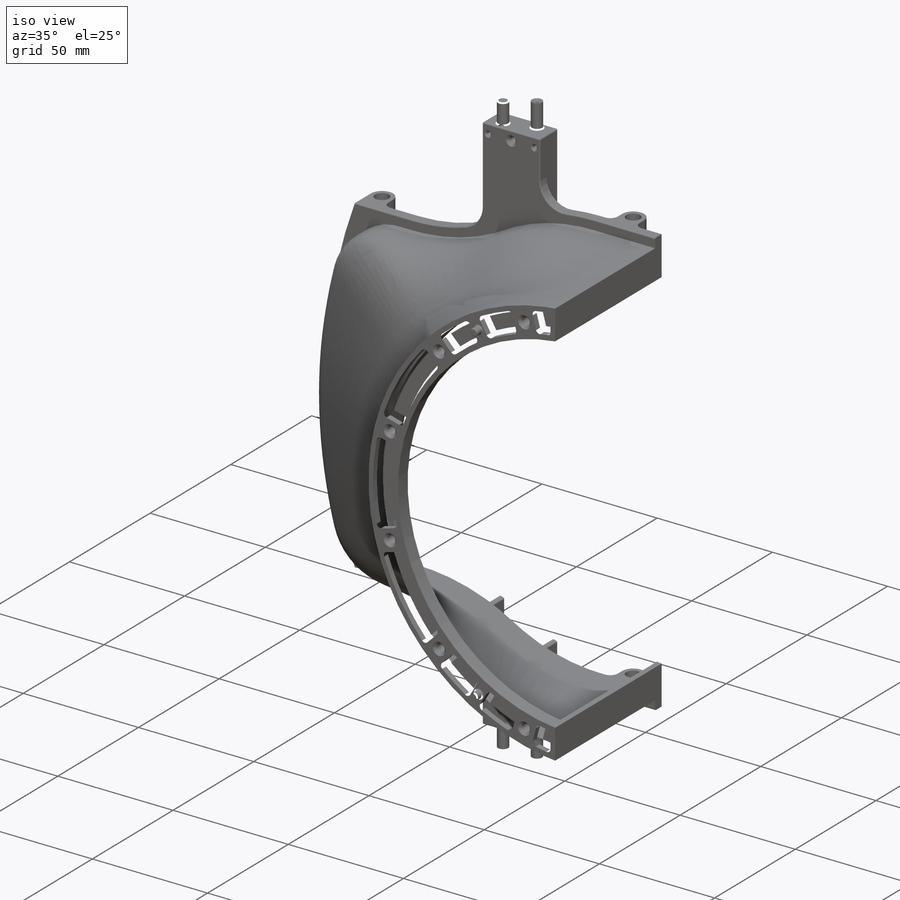
[diagram: iso view]
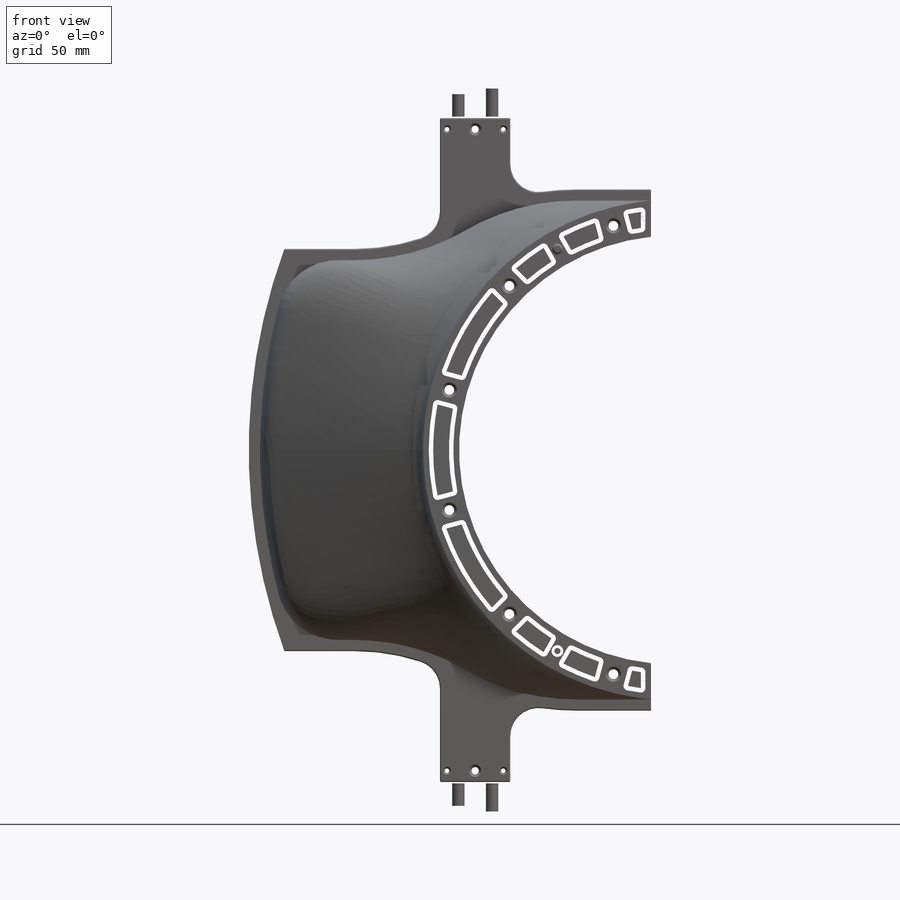
[diagram: front view]
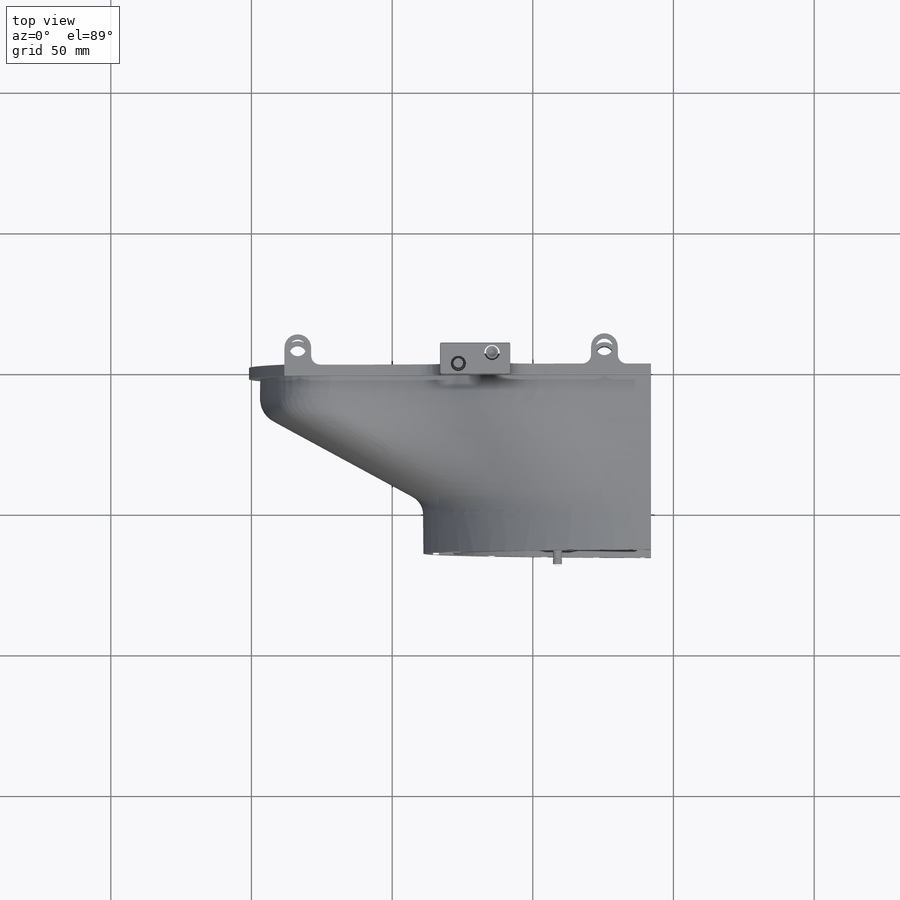
[diagram: top view]
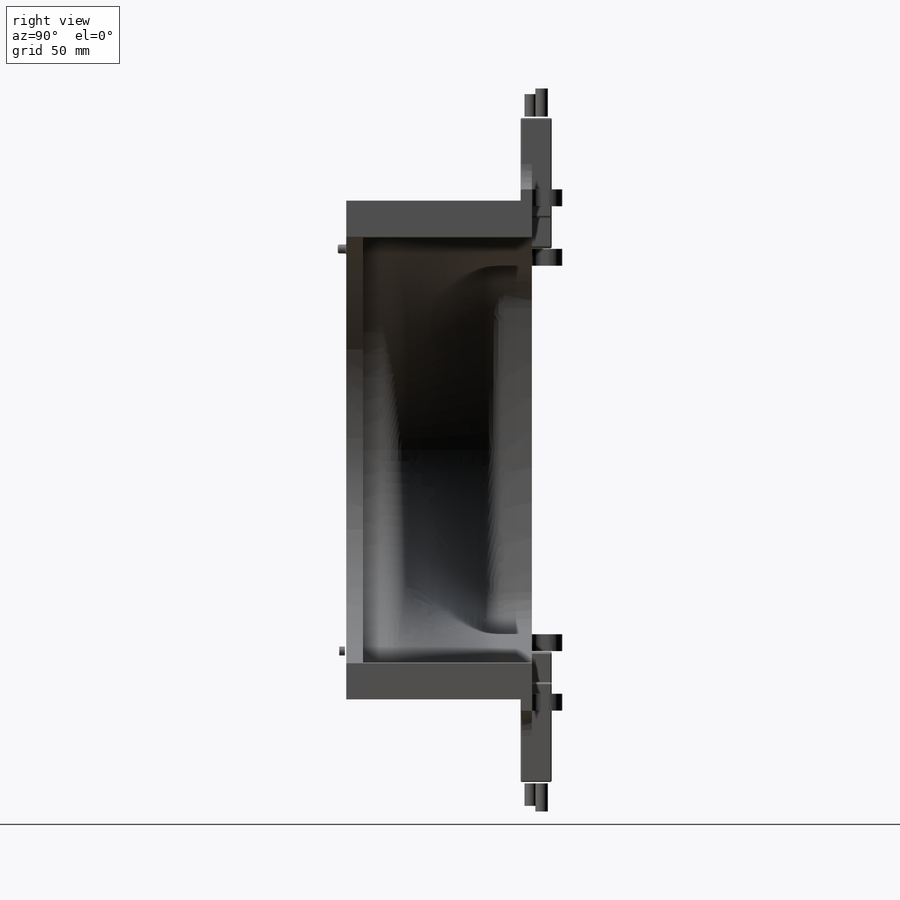
[diagram: right view]
SOLIDWORKS PART (.sldprt)
format: sldprt  version: not decoded by parser v0  size: 2,188,800 bytes
history: native  units: mm
features: sketch x31, extrude x13, fillet x8, mirror x7, shell x4, hole x4, thread x3, cut_extrude x2, pattern_circular x2, material x1, plane x1, boolean_combine x1 (+11 scaffold rows collapsed)
feature tree (88):
  scaffold x11  (default folders/planes/origin — collapsed)
  material  "6061 Alloy"
  plane  "Plane1"  Offset=60mm
  sketch  "Sketch9"  dims[D1=89.0mm D2=76.2mm D3=8.0mm]
  extrude  "Boss-Extrude2"  Depth=6mm
  sketch  "Sketch10"  dims[D2=430.4mm D1=57.0mm]
  sketch  "Sketch11"  dims[D1=2.0mm]
  extrude  "Boss-Extrude3"  Depth=7mm
  sketch  "Sketch12"  dims[c1.D4=212.0mm c1.D5=80.0mm c1.D6=20.0mm c1.D1=6.0mm c1.D2=6.0mm c1.D3=6.0mm c2.D5=~103.700366mm c2.D4=~138.301962mm c2.D7=27.0mm c3.D5=25.0mm c3.D8=143.0mm]
  extrude  "Boss-Extrude4"  Depth=4mm
  sketch  "Sketch13"  dims[D1=2.0mm]
  extrude  "Boss-Extrude5"  Depth=6mm
  sketch  "east profile"  dims[D1=2.0mm]
  sketch  "west profile"
  sketch  "guide horz wrap"  dims[D1=9.0mm D2=7.0mm D3=1.0mm D4=1.0mm]
  sketch  "guide sym axis"
  sketch  "guide straight top"
  mirror  "Mirror2"
  boolean_combine  "Combine1"
  shell  "Shell1"  Thickness=2mm
  shell  "Combine2"  [1 undecoded]
  sketch  "Sketch14"  dims[D3=6.0mm D1=9.525mm D2=6.0mm]
  extrude  "Boss-Extrude6"  Depth=6mm
  sketch  "Sketch15"  dims[D1=~5.091917mm D2=9.525mm D3=109.0mm]
  extrude  "Boss-Extrude7"  Depth=6mm
  mirror  "Mirror3"
  shell  "Combine3"  [1 undecoded]
  fillet  "Fillet2"  Radius=4.7625mm
  fillet  "Fillet3"  Radius=3.175mm
  sketch  "Sketch16"  dims[D1=1.0mm D2=2.0mm]
  extrude  "Boss-Extrude8"  [1 undecoded]
  mirror  "Mirror4"
  shell  "Combine4"  [1 undecoded]
  fillet  "Fillet4"  Radius=6.35mm
  sketch  "Sketch17"  dims[D1=2.0mm]
  cut_extrude  "Cut-Extrude1"  Depth=2mm
  sketch  "Sketch18"  dims[c1.D1=~53.713778mm c2.D1=15.0deg c2.D2=82.5mm c2.D3=12.0mm c2.D4=9.0mm]
  extrude  "Boss-Extrude9"  [1 undecoded]
  pattern_circular  "CirPattern1"  Count=6 Angle=150deg
  sketch  "Sketch19"  dims[c1.D1=~82.194813mm c2.D1=15.0deg c2.D2=81.5mm c2.D5=81.5mm c3.D1=~79.322061mm c4.D1=15.0deg c4.D2=82.5mm]
  hole  "#8-32 Tapped Hole1"  [1 undecoded]
  sketch  "3DSketch1"
  thread  "Hole Thread1"  Diameter=4.1656mm  [1 undecoded]
  sketch  "Sketch20"  dims[hole-wizard template sketch: 46 standard entries collapsed; hole parameters kept: c15.Thru Tap Drill Dia.=3.4544mm c15.Thru Tap Drill Depth=6.0mm c15.Near C'Sink Dia.=5.4356mm c15.D4=~3.666174mm c15.Near C'Sink Angle=90.0deg c15.Far C'Sink Dia.=4.7244mm c15.D6=~9.919017mm c15.Far C'Sink Angle=90.0deg]
  pattern_circular  "CirPattern2"  Count=6 Angle=150deg
  sketch  "Sketch21"  dims[c1.D1=~70.213829mm c2.D1=30.0deg c2.D2=82.5mm c2.D3=5.0mm c2.D4=12.0mm]
  extrude  "Boss-Extrude10"  [1 undecoded]
  sketch  "Sketch31"  dims[D1=3.175mm]
  extrude  "Boss-Extrude14"  Depth=3mm
  mirror  "Mirror5"
  fillet  "Fillet5"  Radius=1.5875mm
  sketch  "Sketch23"  dims[c1.D1=118.0mm c1.D2=83.5mm c1.D3=25.0mm c2.D2=70.5mm]
  extrude  "Boss-Extrude11"  Depth=11mm
  sketch  "Sketch24"  dims[c1.D1=4.4mm c1.D2=12.0mm c1.D3=~2.652121mm c2.D3=18.0deg]
  extrude  "Boss-Extrude12"  Depth=9mm
  sketch  "Sketch30"
  extrude  "Boss-Extrude13"  Depth=1.5mm
  hole  "#2-56 Tapped Hole2"  Diameter=1.778mm Depth=6.64mm
  sketch  "Sketch35"
  sketch  "Sketch34"  dims[hole-wizard template sketch: 41 standard entries collapsed; hole parameters kept: c13.Near C'Sink Dia.=3.4544mm c13.D4=~33.297463mm c13.Near C'Sink Angle=90.0deg c14.D5=~14.816244mm c14.Drill Angle=118.0deg]
  thread  "Hole Thread4"  Diameter=4.37mm  [1 undecoded]
  mirror  "Mirror7"
  sketch  "Sketch25"  dims[D2=8.0mm D1=2.0mm]
  cut_extrude  "Cut-Extrude3"  [1 undecoded]
  mirror  "includes nubben"
  sketch  "Sketch27"  dims[D1=20.0mm]
  hole  "#5-40 Tapped Hole1"  Diameter=2.5781mm Depth=11mm
  sketch  "3DSketch3"
  sketch  "Sketch28"  dims[hole-wizard template sketch: 46 standard entries collapsed; hole parameters kept: c15.Thru Tap Drill Dia.=2.5781mm c15.Thru Tap Drill Depth=11.0mm c15.Near C'Sink Dia.=4.445mm c15.D4=~3.666174mm c15.Near C'Sink Angle=90.0deg c15.Far C'Sink Dia.=4.445mm c15.D6=~9.919017mm c15.Far C'Sink Angle=90.0deg]
  thread  "Hole Thread2"  Diameter=3.175mm  [1 undecoded]
  hole  "1/16 (0.0625) Diameter Hole2"  Diameter=1.6002mm Depth=11mm
  sketch  "3DSketch4"
  sketch  "Sketch29"  dims[hole-wizard template sketch: 46 standard entries collapsed; hole parameters kept: c15.Thru Hole Dia.=1.6002mm c15.Thru Hole Depth=11.0mm c15.Near C'Sink Dia.=2.8702mm c15.D4=~3.666174mm c15.Near C'Sink Angle=90.0deg c15.Far C'Sink Dia.=2.8702mm c15.D6=~9.919017mm c15.Far C'Sink Angle=90.0deg]
  mirror  "Mirror10"
  fillet  "Fillet8"  Radius=3.175mm
  fillet  "Fillet6"  Radius=10mm
  fillet  "Fillet7"  Radius=0.5mm
  fillet  "Fillet9"  Radius=1.5875mm
decode coverage: 51 of 75 modeling features carry decoded parameters
note: ~ marks probable driven/reference dimensions
note: 11 parameter values undecoded
summary: no parameter record found for 8 features; Diameter pulled from absorbed wizard sketch
note: suppression state not decoded; provenance and decode notes live in map.json
